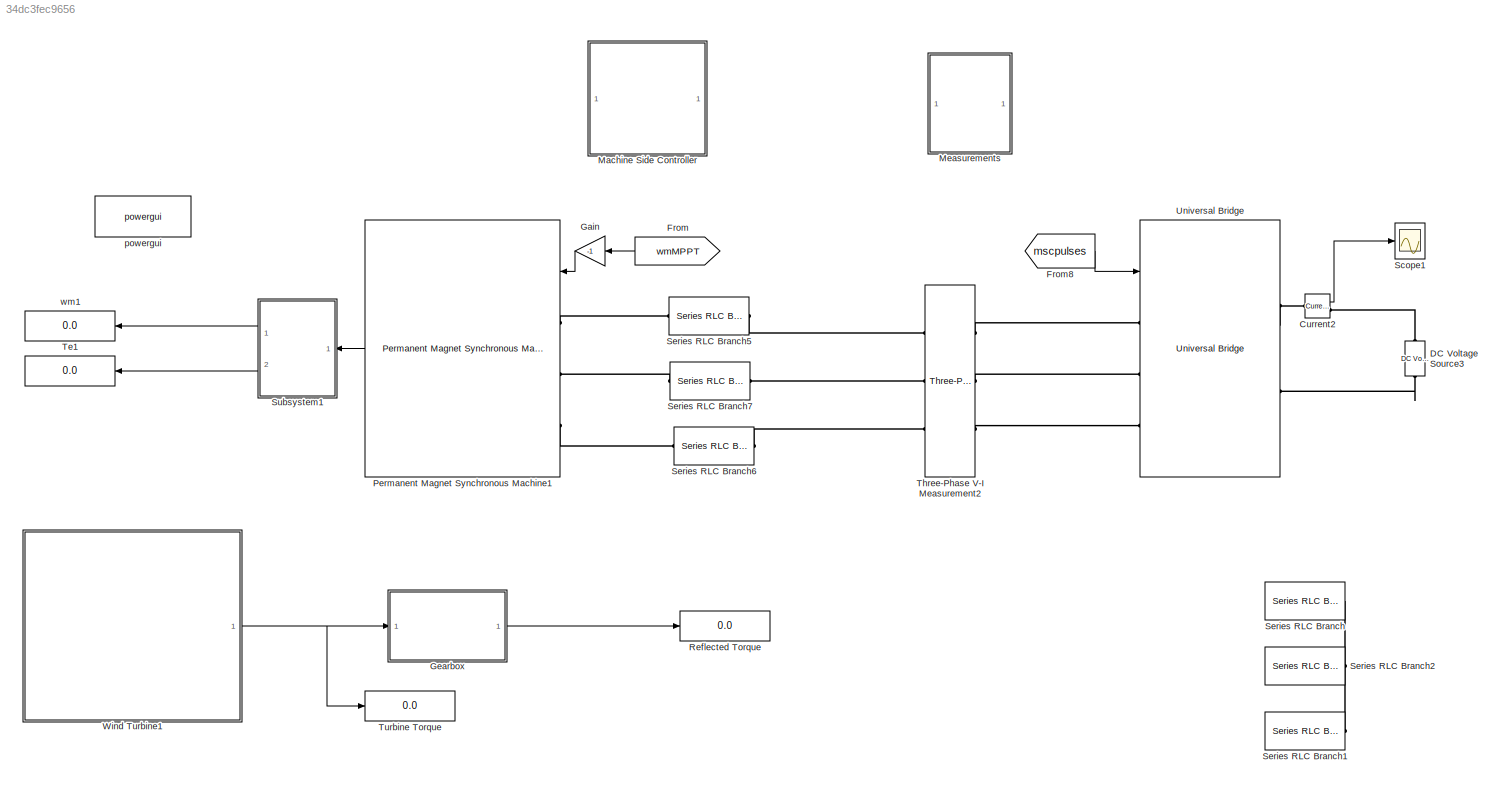
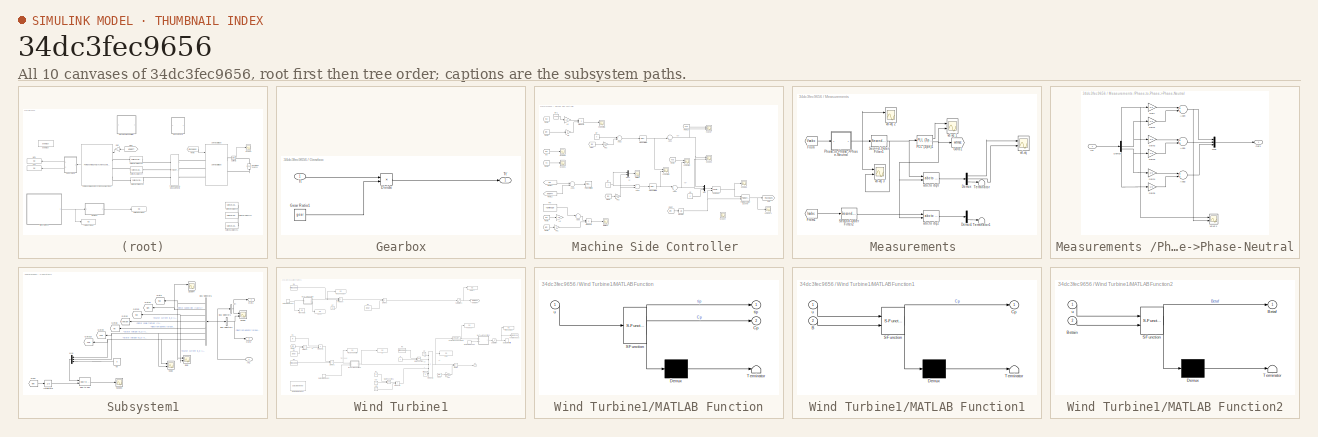
[diagram: thumbnail index - all 10 canvases of the model, root first then tree order]
MODEL slx_34dc3fec9656
KIND model
CONFIG AbsTol = auto
CONFIG FixedStep = auto
CONFIG MaxStep = auto
CONFIG MinStep = auto
CONFIG RelTol = 1e-3
CONFIG SampleTimeConstraint = Unconstrained
CONFIG Solver = VariableStepAuto
CONFIG SolverMode = Auto
CONFIG SolverName = VariableStepAuto
CONFIG StartTime = 0.0
CONFIG StopTime = 10.0
BLOCK [Reference] Current2  REF=powerlib/Measurements/Current Measurement
  Ports = [0, 1, 0, 0, 0, 1, 1]
  SourceBlock = powerlib/Measurements/Current Measurement
  SourceType = Current Measurement
  UserDataPersistent = on
BLOCK [Reference] DC Voltage Source3  REF=powerlib/Electrical
Sources/DC Voltage Source
  Ports = [0, 0, 0, 0, 0, 1, 1]
  SourceBlock = powerlib/Electrical\nSources/DC Voltage Source
  SourceType = DC Voltage Source
BLOCK [From] From
  GotoTag = wmMPPT
  TagVisibility = global
BLOCK [From] From8
  GotoTag = mscpulses
  TagVisibility = global
BLOCK [Gain] Gain
  Gain = -1
  OutDataTypeStr = Inherit: Inherit via internal rule
  ParamDataTypeStr = Inherit: Inherit via internal rule
  SaturateOnIntegerOverflow = off
BLOCK [SubSystem] Gearbox
  Ports = [1, 1]
  RequestExecContextInheritance = off
  Variant = off
BLOCK [Product] Gearbox/Divide
  InputSameDT = off
  Inputs = */
  OutDataTypeStr = Inherit: Inherit via internal rule
  Ports = [2, 1]
  RndMeth = Floor
  SaturateOnIntegerOverflow = off
BLOCK [Constant] Gearbox/Gear Ratio1
  Value = gear
BLOCK [Inport] Gearbox/Tt
  IconDisplay = Port number
BLOCK [Outport] Gearbox/Tt'
  IconDisplay = Port number
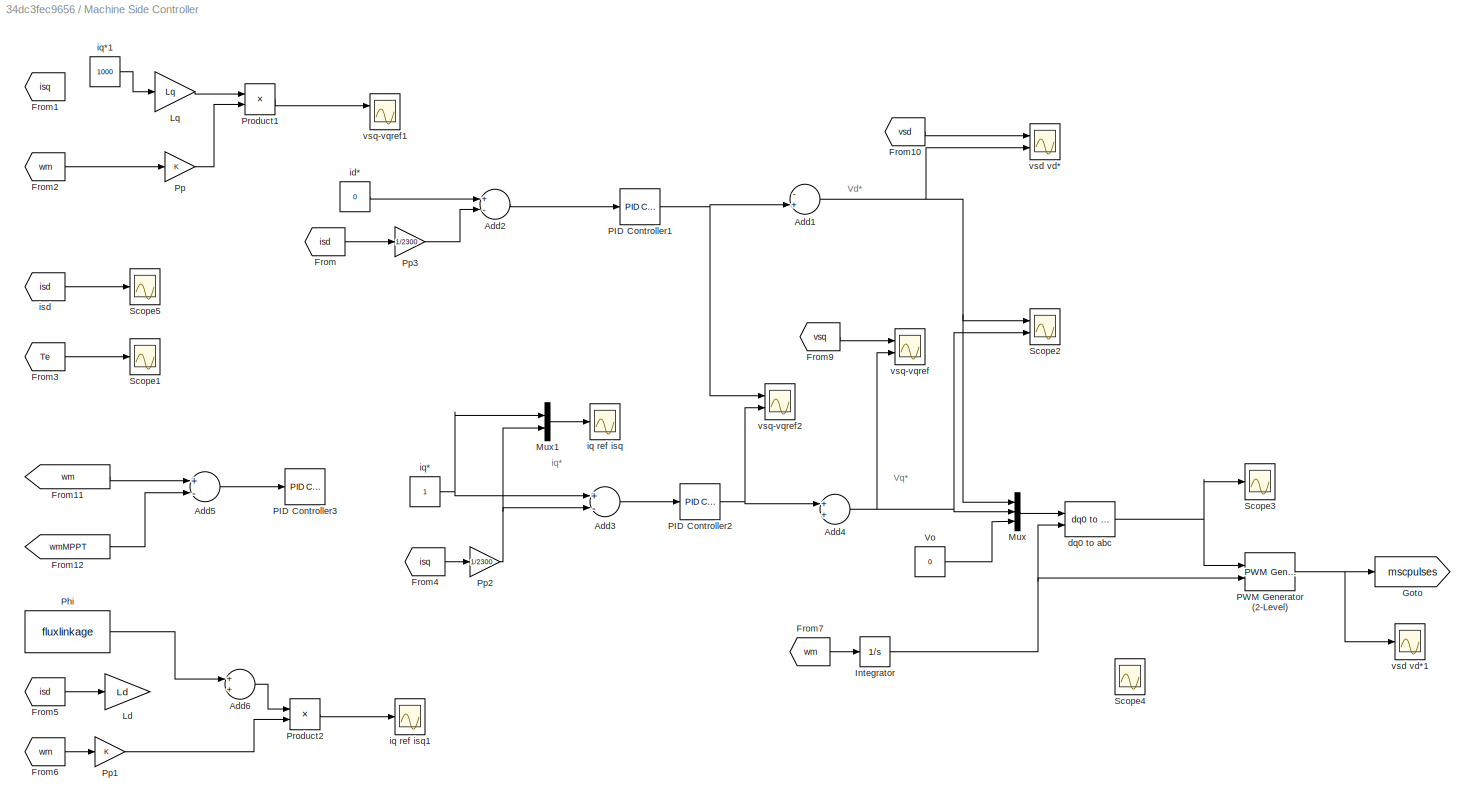
BLOCK [SubSystem] Machine Side Controller 
  Ports = []
  RequestExecContextInheritance = off
  Variant = off
BLOCK [Sum] Machine Side Controller /Add1
  InputSameDT = off
  Inputs = -+
  OutDataTypeStr = Inherit: Inherit via internal rule
  Ports = [2, 1]
  SaturateOnIntegerOverflow = off
BLOCK [Sum] Machine Side Controller /Add2
  InputSameDT = off
  Inputs = +-
  OutDataTypeStr = Inherit: Inherit via internal rule
  Ports = [2, 1]
  SaturateOnIntegerOverflow = off
BLOCK [Sum] Machine Side Controller /Add3
  InputSameDT = off
  Inputs = +-
  OutDataTypeStr = Inherit: Inherit via internal rule
  Ports = [2, 1]
  SaturateOnIntegerOverflow = off
BLOCK [Sum] Machine Side Controller /Add4
  InputSameDT = off
  OutDataTypeStr = Inherit: Inherit via internal rule
  Ports = [2, 1]
  SaturateOnIntegerOverflow = off
BLOCK [Sum] Machine Side Controller /Add5
  InputSameDT = off
  Inputs = +-
  OutDataTypeStr = Inherit: Inherit via internal rule
  Ports = [2, 1]
  SaturateOnIntegerOverflow = off
BLOCK [Sum] Machine Side Controller /Add6
  InputSameDT = off
  OutDataTypeStr = Inherit: Inherit via internal rule
  Ports = [2, 1]
  SaturateOnIntegerOverflow = off
BLOCK [From] Machine Side Controller /From
  GotoTag = isd
  TagVisibility = global
BLOCK [From] Machine Side Controller /From1
  GotoTag = isq
  TagVisibility = global
BLOCK [From] Machine Side Controller /From10
  GotoTag = vsd
  TagVisibility = global
BLOCK [From] Machine Side Controller /From11
  GotoTag = wm
  TagVisibility = global
BLOCK [From] Machine Side Controller /From12
  GotoTag = wmMPPT
  TagVisibility = global
BLOCK [From] Machine Side Controller /From2
  GotoTag = wm
  TagVisibility = global
BLOCK [From] Machine Side Controller /From3
  GotoTag = Te
  TagVisibility = global
BLOCK [From] Machine Side Controller /From4
  GotoTag = isq
  TagVisibility = global
BLOCK [From] Machine Side Controller /From5
  GotoTag = isd
  TagVisibility = global
BLOCK [From] Machine Side Controller /From6
  GotoTag = wm
  TagVisibility = global
BLOCK [From] Machine Side Controller /From7
  GotoTag = wm
  TagVisibility = global
BLOCK [From] Machine Side Controller /From9
  GotoTag = vsq
  TagVisibility = global
BLOCK [Goto] Machine Side Controller /Goto
  GotoTag = mscpulses
  TagVisibility = global
BLOCK [Integrator] Machine Side Controller /Integrator
  Ports = [1, 1]
BLOCK [Gain] Machine Side Controller /Ld
  Gain = Ld
  OutDataTypeStr = Inherit: Inherit via internal rule
  ParamDataTypeStr = Inherit: Inherit via internal rule
  SaturateOnIntegerOverflow = off
BLOCK [Gain] Machine Side Controller /Lq
  Gain = Lq
  OutDataTypeStr = Inherit: Inherit via internal rule
  ParamDataTypeStr = Inherit: Inherit via internal rule
  SaturateOnIntegerOverflow = off
BLOCK [Mux] Machine Side Controller /Mux
  DisplayOption = bar
  Inputs = 3
  Ports = [3, 1]
BLOCK [Mux] Machine Side Controller /Mux1
  DisplayOption = bar
  Inputs = 2
  Ports = [2, 1]
BLOCK [Reference] Machine Side Controller /PID Controller1  REF=simulink/Continuous/PID Controller
  Ports = [1, 1]
  SourceBlock = simulink/Continuous/PID Controller
  SourceType = PID 1dof
BLOCK [Reference] Machine Side Controller /PID Controller2  REF=simulink/Continuous/PID Controller
  Ports = [1, 1]
  SourceBlock = simulink/Continuous/PID Controller
  SourceType = PID 1dof
BLOCK [Reference] Machine Side Controller /PID Controller3  REF=simulink/Continuous/PID Controller
  Ports = [1, 1]
  SourceBlock = simulink/Continuous/PID Controller
  SourceType = PID 1dof
BLOCK [Reference] Machine Side Controller /PWM Generator (2-Level)  REF=powerlib_meascontrol/Pulse & Signal
Generators/PWM Generator
(2-Level)
  Ports = [2, 1]
  SourceBlock = powerlib_meascontrol/Pulse & Signal\nGenerators/PWM Generator\n(2-Level)
  SourceType = PWM Generator (2-Level)
BLOCK [Constant] Machine Side Controller /Phi
  Value = fluxlinkage
BLOCK [Gain] Machine Side Controller /Pp
  OutDataTypeStr = Inherit: Inherit via internal rule
  ParamDataTypeStr = Inherit: Inherit via internal rule
  SaturateOnIntegerOverflow = off
BLOCK [Gain] Machine Side Controller /Pp1
  OutDataTypeStr = Inherit: Inherit via internal rule
  ParamDataTypeStr = Inherit: Inherit via internal rule
  SaturateOnIntegerOverflow = off
BLOCK [Gain] Machine Side Controller /Pp2
  Gain = 1/2300
  OutDataTypeStr = Inherit: Inherit via internal rule
  ParamDataTypeStr = Inherit: Inherit via internal rule
  SaturateOnIntegerOverflow = off
BLOCK [Gain] Machine Side Controller /Pp3
  Gain = 1/2300
  OutDataTypeStr = Inherit: Inherit via internal rule
  ParamDataTypeStr = Inherit: Inherit via internal rule
  SaturateOnIntegerOverflow = off
BLOCK [Product] Machine Side Controller /Product1
  InputSameDT = off
  OutDataTypeStr = Inherit: Inherit via internal rule
  Ports = [2, 1]
  RndMeth = Floor
  SaturateOnIntegerOverflow = off
BLOCK [Product] Machine Side Controller /Product2
  InputSameDT = off
  OutDataTypeStr = Inherit: Inherit via internal rule
  Ports = [2, 1]
  RndMeth = Floor
  SaturateOnIntegerOverflow = off
BLOCK [Scope] Machine Side Controller /Scope1
  Ports = [1]
  ScopeSpecificationString = Simulink.scopes.TimeScopeBlockCfg('CurrentConfiguration', extmgr.ConfigurationSet(extmgr.Configuration('Core','General UI',true),extmgr.Configuration('Core','Source UI',true),extmgr.Configuration('Sources','WiredSimulink',true,'DataLoggingVariableName','ScopeData2','DataLoggingSaveFormat','Array','DataLoggingDecimation','1','DataLoggingDecimateData',true),extmgr.Configuration('Visuals','Time Domai...<+1614ch>
BLOCK [Scope] Machine Side Controller /Scope2
  NumInputPorts = 2
  Ports = [2]
  ScopeSpecificationString = Simulink.scopes.TimeScopeBlockCfg('CurrentConfiguration', extmgr.ConfigurationSet(extmgr.Configuration('Core','General UI',true),extmgr.Configuration('Core','Source UI',true),extmgr.Configuration('Sources','WiredSimulink',true,'DataLoggingVariableName','ScopeData3','DataLoggingSaveFormat','Array','DataLoggingDecimation','1','DataLoggingDecimateData',true),extmgr.Configuration('Visuals','Time Domai...<+1531ch>
BLOCK [Scope] Machine Side Controller /Scope3
  Ports = [1]
  ScopeSpecificationString = Simulink.scopes.TimeScopeBlockCfg('CurrentConfiguration', extmgr.ConfigurationSet(extmgr.Configuration('Core','General UI',true),extmgr.Configuration('Core','Source UI',true),extmgr.Configuration('Sources','WiredSimulink',true,'DataLoggingVariableName','ScopeData4','DataLoggingSaveFormat','Array','DataLoggingDecimation','1','DataLoggingDecimateData',true),extmgr.Configuration('Visuals','Time Domai...<+1536ch>
BLOCK [Scope] Machine Side Controller /Scope4
  NumInputPorts = 2
  Ports = [2]
  ScopeSpecificationString = Simulink.scopes.TimeScopeBlockCfg('CurrentConfiguration', extmgr.ConfigurationSet(extmgr.Configuration('Core','General UI',true),extmgr.Configuration('Core','Source UI',true),extmgr.Configuration('Sources','WiredSimulink',true,'DataLoggingVariableName','ScopeData1','DataLoggingSaveFormat','Array','DataLoggingDecimation','1','DataLoggingDecimateData',true),extmgr.Configuration('Visuals','Time Domai...<+1548ch>
BLOCK [Scope] Machine Side Controller /Scope5
  Ports = [1]
  ScopeSpecificationString = Simulink.scopes.TimeScopeBlockCfg('CurrentConfiguration', extmgr.ConfigurationSet(extmgr.Configuration('Core','General UI',true),extmgr.Configuration('Core','Source UI',true),extmgr.Configuration('Sources','WiredSimulink',true,'DataLoggingVariableName','ScopeData6','DataLoggingSaveFormat','Array','DataLoggingDecimation','1','DataLoggingDecimateData',true),extmgr.Configuration('Visuals','Time Domai...<+1576ch>
BLOCK [Constant] Machine Side Controller /Vo
  Value = 0
BLOCK [Reference] Machine Side Controller /dq0 to abc  REF=powerlib_meascontrol/Transformations/dq0 to abc
  Ports = [2, 1]
  SourceBlock = powerlib_meascontrol/Transformations/dq0 to abc
  SourceType = dq0 to abc Transformation
BLOCK [Constant] Machine Side Controller /id*
  Value = 0
BLOCK [Scope] Machine Side Controller /iq ref isq
  Ports = [1]
  ScopeSpecificationString = Simulink.scopes.TimeScopeBlockCfg('CurrentConfiguration', extmgr.ConfigurationSet(extmgr.Configuration('Core','General UI',true),extmgr.Configuration('Core','Source UI',true),extmgr.Configuration('Sources','WiredSimulink',true,'DataLoggingVariableName','ScopeData7'),extmgr.Configuration('Visuals','Time Domain',true,'SerializedDisplays',{struct('MinYLimReal','-27.35983','MaxYLimReal','29.38558','YL...<+1447ch>
BLOCK [Scope] Machine Side Controller /iq ref isq1
  Ports = [1]
  ScopeSpecificationString = Simulink.scopes.TimeScopeBlockCfg('CurrentConfiguration', extmgr.ConfigurationSet(extmgr.Configuration('Core','General UI',true),extmgr.Configuration('Core','Source UI',true),extmgr.Configuration('Sources','WiredSimulink',true,'DataLoggingVariableName','ScopeData8','DataLoggingSaveFormat','Array','DataLoggingDecimation','1','DataLoggingDecimateData',true),extmgr.Configuration('Visuals','Time Domai...<+1492ch>
BLOCK [Constant] Machine Side Controller /iq*
BLOCK [Constant] Machine Side Controller /iq*1
  Value = 1000
BLOCK [From] Machine Side Controller /isd
  GotoTag = isd
  TagVisibility = global
BLOCK [Scope] Machine Side Controller /vsd vd*
  NumInputPorts = 2
  Ports = [2]
  ScopeSpecificationString = Simulink.scopes.TimeScopeBlockCfg('CurrentConfiguration', extmgr.ConfigurationSet(extmgr.Configuration('Core','General UI',true),extmgr.Configuration('Core','Source UI',true),extmgr.Configuration('Sources','WiredSimulink',true,'DataLoggingVariableName','ScopeData9'),extmgr.Configuration('Visuals','Time Domain',true,'SerializedDisplays',{struct('MinYLimReal','-1778.05056','MaxYLimReal','1671.94944'...<+1466ch>
BLOCK [Scope] Machine Side Controller /vsd vd*1
  Ports = [1]
  ScopeSpecificationString = Simulink.scopes.TimeScopeBlockCfg('CurrentConfiguration', extmgr.ConfigurationSet(extmgr.Configuration('Core','General UI',true),extmgr.Configuration('Core','Source UI',true),extmgr.Configuration('Sources','WiredSimulink',true,'DataLoggingVariableName','ScopeData10','DataLoggingSaveFormat','Array','DataLoggingDecimation','1','DataLoggingDecimateData',true),extmgr.Configuration('Visuals','Time Doma...<+1648ch>
BLOCK [Scope] Machine Side Controller /vsq-vqref
  NumInputPorts = 2
  Ports = [2]
  ScopeSpecificationString = Simulink.scopes.TimeScopeBlockCfg('CurrentConfiguration', extmgr.ConfigurationSet(extmgr.Configuration('Core','General UI',true),extmgr.Configuration('Core','Source UI',true),extmgr.Configuration('Sources','WiredSimulink',true,'DataLoggingVariableName','ScopeData11','DataLoggingSaveFormat','Array','DataLoggingDecimation','1','DataLoggingDecimateData',true),extmgr.Configuration('Visuals','Time Doma...<+1568ch>
BLOCK [Scope] Machine Side Controller /vsq-vqref1
  NumInputPorts = 2
  Ports = [2]
  ScopeSpecificationString = Simulink.scopes.TimeScopeBlockCfg('CurrentConfiguration', extmgr.ConfigurationSet(extmgr.Configuration('Core','General UI',true),extmgr.Configuration('Core','Source UI',true),extmgr.Configuration('Sources','WiredSimulink',true,'DataLoggingVariableName','ScopeData2','DataLoggingLimitDataPoints',true,'DataLoggingSaveFormat','Array','DataLoggingDecimation','1','DataLoggingDecimateData',true),extmgr.C...<+1556ch>
BLOCK [Scope] Machine Side Controller /vsq-vqref2
  NumInputPorts = 2
  Ports = [2]
  ScopeSpecificationString = Simulink.scopes.TimeScopeBlockCfg('CurrentConfiguration', extmgr.ConfigurationSet(extmgr.Configuration('Core','General UI',true),extmgr.Configuration('Core','Source UI',true),extmgr.Configuration('Sources','WiredSimulink',true,'DataLoggingVariableName','ScopeData13'),extmgr.Configuration('Visuals','Time Domain',true,'SerializedDisplays',{struct('MinYLimReal','-0.00093','MaxYLimReal','0.00101','YLa...<+1466ch>
BLOCK [SubSystem] Measurements 
  Ports = []
  RequestExecContextInheritance = off
  Variant = off
BLOCK [Demux] Measurements /Demux
  DisplayOption = bar
  Outputs = 3
  Ports = [1, 3]
BLOCK [Demux] Measurements /Demux1
  DisplayOption = bar
  Outputs = 3
  Ports = [1, 3]
BLOCK [From] Measurements /From
  GotoTag = Vsabc
  TagVisibility = global
BLOCK [From] Measurements /From1
  GotoTag = Isabc
  TagVisibility = global
BLOCK [Goto] Measurements /Goto1
  GotoTag = wtmsc
  TagVisibility = global
BLOCK [Reference] Measurements /PLL (3ph)1  REF=powerlib_meascontrol/PLL/PLL
(3ph)
  Ports = [1, 2]
  SourceBlock = powerlib_meascontrol/PLL/PLL\n(3ph)
  SourceType = PLL (3ph)
BLOCK [SubSystem] Measurements /Phase-to-Phase->Phase-Neutral
  Ports = [1, 1]
  RequestExecContextInheritance = off
  Variant = off
BLOCK [Sum] Measurements /Phase-to-Phase->Phase-Neutral/Add1
  InputSameDT = off
  OutDataTypeStr = Inherit: Inherit via internal rule
  Ports = [2, 1]
  SaturateOnIntegerOverflow = off
BLOCK [Sum] Measurements /Phase-to-Phase->Phase-Neutral/Add2
  InputSameDT = off
  OutDataTypeStr = Inherit: Inherit via internal rule
  Ports = [2, 1]
  SaturateOnIntegerOverflow = off
BLOCK [Sum] Measurements /Phase-to-Phase->Phase-Neutral/Add4
  InputSameDT = off
  OutDataTypeStr = Inherit: Inherit via internal rule
  Ports = [2, 1]
  SaturateOnIntegerOverflow = off
BLOCK [Demux] Measurements /Phase-to-Phase->Phase-Neutral/Demux
  DisplayOption = bar
  Outputs = 3
  Ports = [1, 3]
BLOCK [Gain] Measurements /Phase-to-Phase->Phase-Neutral/Gain
  Gain = 2/3
  OutDataTypeStr = Inherit: Inherit via internal rule
  ParamDataTypeStr = Inherit: Inherit via internal rule
  SaturateOnIntegerOverflow = off
BLOCK [Gain] Measurements /Phase-to-Phase->Phase-Neutral/Gain1
  Gain = 1/3
  OutDataTypeStr = Inherit: Inherit via internal rule
  ParamDataTypeStr = Inherit: Inherit via internal rule
  SaturateOnIntegerOverflow = off
BLOCK [Gain] Measurements /Phase-to-Phase->Phase-Neutral/Gain2
  Gain = 2/3
  OutDataTypeStr = Inherit: Inherit via internal rule
  ParamDataTypeStr = Inherit: Inherit via internal rule
  SaturateOnIntegerOverflow = off
BLOCK [Gain] Measurements /Phase-to-Phase->Phase-Neutral/Gain3
  Gain = 1/3
  OutDataTypeStr = Inherit: Inherit via internal rule
  ParamDataTypeStr = Inherit: Inherit via internal rule
  SaturateOnIntegerOverflow = off
BLOCK [Gain] Measurements /Phase-to-Phase->Phase-Neutral/Gain4
  Gain = 2/3
  OutDataTypeStr = Inherit: Inherit via internal rule
  ParamDataTypeStr = Inherit: Inherit via internal rule
  SaturateOnIntegerOverflow = off
BLOCK [Gain] Measurements /Phase-to-Phase->Phase-Neutral/Gain5
  Gain = 1/3
  OutDataTypeStr = Inherit: Inherit via internal rule
  ParamDataTypeStr = Inherit: Inherit via internal rule
  SaturateOnIntegerOverflow = off
BLOCK [Inport] Measurements /Phase-to-Phase->Phase-Neutral/In1
  IconDisplay = Port number
BLOCK [Mux] Measurements /Phase-to-Phase->Phase-Neutral/Mux
  DisplayOption = bar
  Inputs = 3
  Ports = [3, 1]
BLOCK [Outport] Measurements /Phase-to-Phase->Phase-Neutral/Out1
  IconDisplay = Port number
BLOCK [Scope] Measurements /Phase-to-Phase->Phase-Neutral/vd-vq 1
  NumInputPorts = 2
  Ports = [2]
  ScopeSpecificationString = Simulink.scopes.TimeScopeBlockCfg('CurrentConfiguration', extmgr.ConfigurationSet(extmgr.Configuration('Core','General UI',true),extmgr.Configuration('Core','Source UI',true),extmgr.Configuration('Sources','WiredSimulink',true,'DataLoggingVariableName','ScopeData1'),extmgr.Configuration('Visuals','Time Domain',true,'SerializedDisplays',{struct('MinYLimReal','-26134.92389','MaxYLimReal','26232.3082...<+1474ch>
BLOCK [Reference] Measurements /Second-Order Filter1  REF=powerlib_meascontrol/Filters/Second-Order
Filter
  Ports = [1, 1]
  SourceBlock = powerlib_meascontrol/Filters/Second-Order\nFilter
  SourceType = Second-Order Filter
BLOCK [Reference] Measurements /Second-Order Filter2  REF=powerlib_meascontrol/Filters/Second-Order
Filter
  Ports = [1, 1]
  SourceBlock = powerlib_meascontrol/Filters/Second-Order\nFilter
  SourceType = Second-Order Filter
BLOCK [Terminator] Measurements /Terminator
BLOCK [Terminator] Measurements /Terminator1
BLOCK [Reference] Measurements /abc to dq0  REF=powerlib_meascontrol/Transformations/abc to dq0
  Ports = [2, 1]
  SourceBlock = powerlib_meascontrol/Transformations/abc to dq0
  SourceType = abc to dq0 Transformation
BLOCK [Reference] Measurements /abc to dq2  REF=powerlib_meascontrol/Transformations/abc to dq0
  Ports = [2, 1]
  SourceBlock = powerlib_meascontrol/Transformations/abc to dq0
  SourceType = abc to dq0 Transformation
BLOCK [Scope] Measurements /vd-vq 
  NumInputPorts = 2
  Ports = [2]
  ScopeSpecificationString = Simulink.scopes.TimeScopeBlockCfg('CurrentConfiguration', extmgr.ConfigurationSet(extmgr.Configuration('Core','General UI',true),extmgr.Configuration('Core','Source UI',true),extmgr.Configuration('Sources','WiredSimulink',true,'DataLoggingVariableName','ScopeData1','DataLoggingSaveFormat','Array','DataLoggingDecimation','1','DataLoggingDecimateData',true),extmgr.Configuration('Visuals','Time Domai...<+1540ch>
BLOCK [Scope] Measurements /vd-vq 1
  NumInputPorts = 2
  Ports = [2]
  ScopeSpecificationString = Simulink.scopes.TimeScopeBlockCfg('CurrentConfiguration', extmgr.ConfigurationSet(extmgr.Configuration('Core','General UI',true),extmgr.Configuration('Core','Source UI',true),extmgr.Configuration('Sources','WiredSimulink',true,'DataLoggingVariableName','ScopeData3','DataLoggingSaveFormat','Array','DataLoggingDecimation','1','DataLoggingDecimateData',true),extmgr.Configuration('Visuals','Time Domai...<+1554ch>
BLOCK [Scope] Measurements /vd-vq 2
  NumInputPorts = 2
  Ports = [2]
  ScopeSpecificationString = Simulink.scopes.TimeScopeBlockCfg('CurrentConfiguration', extmgr.ConfigurationSet(extmgr.Configuration('Core','General UI',true),extmgr.Configuration('Core','Source UI',true),extmgr.Configuration('Sources','WiredSimulink',true,'DataLoggingVariableName','ScopeData4','DataLoggingSaveFormat','Array','DataLoggingDecimation','1','DataLoggingDecimateData',true),extmgr.Configuration('Visuals','Time Domai...<+1628ch>
BLOCK [Scope] Measurements /vd-vq 3
  NumInputPorts = 2
  Ports = [2]
  ScopeSpecificationString = Simulink.scopes.TimeScopeBlockCfg('CurrentConfiguration', extmgr.ConfigurationSet(extmgr.Configuration('Core','General UI',true),extmgr.Configuration('Core','Source UI',true),extmgr.Configuration('Sources','WiredSimulink',true,'DataLoggingVariableName','ScopeData1'),extmgr.Configuration('Visuals','Time Domain',true,'SerializedDisplays',{struct('MinYLimReal','-1.53079','MaxYLimReal','1.52127','YLab...<+1604ch>
BLOCK [Reference] Permanent Magnet Synchronous Machine1  REF=powerlib/Machines/Permanent Magnet
Synchronous Machine
  Ports = [1, 1, 0, 0, 0, 3]
  SourceBlock = powerlib/Machines/Permanent Magnet\nSynchronous Machine
  SourceType = Permanent Magnet Synchronous Machine
BLOCK [Display] Reflected Torque
  Decimation = 1
  Ports = [1]
BLOCK [Scope] Scope1
  Ports = [1]
  ScopeSpecificationString = C++SS(StrPVP('SaveName','ScopeData1'))
BLOCK [Reference] Series RLC Branch  REF=powerlib/Elements/Series RLC Branch
  Ports = [0, 0, 0, 0, 0, 1, 1]
  SourceBlock = powerlib/Elements/Series RLC Branch
  SourceType = Series RLC Branch
BLOCK [Reference] Series RLC Branch1  REF=powerlib/Elements/Series RLC Branch
  Ports = [0, 0, 0, 0, 0, 1, 1]
  SourceBlock = powerlib/Elements/Series RLC Branch
  SourceType = Series RLC Branch
BLOCK [Reference] Series RLC Branch2  REF=powerlib/Elements/Series RLC Branch
  Ports = [0, 0, 0, 0, 0, 1, 1]
  SourceBlock = powerlib/Elements/Series RLC Branch
  SourceType = Series RLC Branch
BLOCK [Reference] Series RLC Branch5  REF=powerlib/Elements/Series RLC Branch
  Ports = [0, 0, 0, 0, 0, 1, 1]
  SourceBlock = powerlib/Elements/Series RLC Branch
  SourceType = Series RLC Branch
BLOCK [Reference] Series RLC Branch6  REF=powerlib/Elements/Series RLC Branch
  Ports = [0, 0, 0, 0, 0, 1, 1]
  SourceBlock = powerlib/Elements/Series RLC Branch
  SourceType = Series RLC Branch
BLOCK [Reference] Series RLC Branch7  REF=powerlib/Elements/Series RLC Branch
  Ports = [0, 0, 0, 0, 0, 1, 1]
  SourceBlock = powerlib/Elements/Series RLC Branch
  SourceType = Series RLC Branch
BLOCK [SubSystem] Subsystem1
  Ports = [1, 2]
  RequestExecContextInheritance = off
  Variant = off
BLOCK [BusSelector] Subsystem1/Bus Selector1
  OutputAsBus = on
  OutputSignals = Rotor speed wm (rad/s)
  Ports = [1, 1]
BLOCK [BusSelector] Subsystem1/Bus Selector2
  OutputSignals = Electromagnetic torque Te (N*m)
  Ports = [1, 1]
BLOCK [BusSelector] Subsystem1/Bus Selector5
  OutputSignals = Stator current is_d (A),Rotor speed wm (rad/s),Stator current is_q (A),Rotor angle thetam (rad),Electromagnetic torque Te (N*m),Stator voltage Vs_q (V),Stator voltage Vs_d (V)
  Ports = [1, 7]
BLOCK [From] Subsystem1/From
  GotoTag = wm
  TagVisibility = global
BLOCK [Goto] Subsystem1/Goto
  GotoTag = isd
  TagVisibility = global
BLOCK [Goto] Subsystem1/Goto1
  GotoTag = wm
  TagVisibility = global
BLOCK [Goto] Subsystem1/Goto10
  GotoTag = vsd
  TagVisibility = global
BLOCK [Goto] Subsystem1/Goto2
  GotoTag = thetam
  TagVisibility = global
BLOCK [Goto] Subsystem1/Goto3
  GotoTag = isq
  TagVisibility = global
BLOCK [Goto] Subsystem1/Goto8
  GotoTag = Te
  TagVisibility = global
BLOCK [Goto] Subsystem1/Goto9
  GotoTag = vsq
  TagVisibility = global
BLOCK [Inport] Subsystem1/In1
  IconDisplay = Port number
BLOCK [Integrator] Subsystem1/Integrator
  Ports = [1, 1]
BLOCK [Mux] Subsystem1/Mux
  DisplayOption = bar
  Inputs = 3
  Ports = [3, 1]
BLOCK [Outport] Subsystem1/Out1
  IconDisplay = Port number
BLOCK [Outport] Subsystem1/Out2
  IconDisplay = Port number
  Port = 2
BLOCK [Scope] Subsystem1/Scope
  NumInputPorts = 2
  Ports = [2]
  ScopeSpecificationString = Simulink.scopes.TimeScopeBlockCfg('CurrentConfiguration', extmgr.ConfigurationSet(extmgr.Configuration('Core','General UI',true),extmgr.Configuration('Core','Source UI',true),extmgr.Configuration('Sources','WiredSimulink',true,'DataLoggingVariableName','ScopeData1','DataLoggingSaveFormat','Array','DataLoggingDecimation','1','DataLoggingDecimateData',true),extmgr.Configuration('Visuals','Time Domai...<+1592ch>
BLOCK [Scope] Subsystem1/Scope3
  Ports = [1]
  ScopeSpecificationString = Simulink.scopes.TimeScopeBlockCfg('CurrentConfiguration', extmgr.ConfigurationSet(extmgr.Configuration('Core','General UI',true),extmgr.Configuration('Core','Source UI',true),extmgr.Configuration('Sources','WiredSimulink',true,'DataLoggingVariableName','ScopeData5'),extmgr.Configuration('Visuals','Time Domain',true,'SerializedDisplays',{struct('MinYLimReal','-920.96103','MaxYLimReal','921.85507','...<+1488ch>
BLOCK [Scope] Subsystem1/Scope4
  NumInputPorts = 2
  Ports = [2]
  ScopeSpecificationString = Simulink.scopes.TimeScopeBlockCfg('CurrentConfiguration', extmgr.ConfigurationSet(extmgr.Configuration('Core','General UI',true),extmgr.Configuration('Core','Source UI',true),extmgr.Configuration('Sources','WiredSimulink',true,'DataLoggingVariableName','ScopeData2'),extmgr.Configuration('Visuals','Time Domain',true,'SerializedDisplays',{struct('MinYLimReal','150.59939','MaxYLimReal','158.5363','YL...<+1449ch>
BLOCK [Constant] Subsystem1/Vo
  Value = 0
BLOCK [Scope] Subsystem1/Vsqd
  NumInputPorts = 2
  Ports = [2]
  ScopeSpecificationString = Simulink.scopes.TimeScopeBlockCfg('CurrentConfiguration', extmgr.ConfigurationSet(extmgr.Configuration('Core','General UI',true),extmgr.Configuration('Core','Source UI',true),extmgr.Configuration('Sources','WiredSimulink',true,'DataLoggingVariableName','ScopeData1'),extmgr.Configuration('Visuals','Time Domain',true,'SerializedDisplays',{struct('MinYLimReal','-796.40374','MaxYLimReal','831.79898','...<+1499ch>
BLOCK [Reference] Subsystem1/dq0 to abc  REF=powerlib_meascontrol/Transformations/dq0 to abc
  Ports = [2, 1]
  SourceBlock = powerlib_meascontrol/Transformations/dq0 to abc
  SourceType = dq0 to abc Transformation
BLOCK [Scope] Subsystem1/isdq
  NumInputPorts = 2
  Ports = [2]
  ScopeSpecificationString = Simulink.scopes.TimeScopeBlockCfg('CurrentConfiguration', extmgr.ConfigurationSet(extmgr.Configuration('Core','General UI',true),extmgr.Configuration('Core','Source UI',true),extmgr.Configuration('Sources','WiredSimulink',true,'DataLoggingVariableName','ScopeData4'),extmgr.Configuration('Visuals','Time Domain',true,'SerializedDisplays',{struct('MinYLimReal','-67099.29484','MaxYLimReal','53216.0487...<+1515ch>
BLOCK [Display] Te1
  Decimation = 1
  Ports = [1]
BLOCK [Reference] Three-Phase V-I Measurement2  REF=powerlib/Measurements/Three-Phase
V-I Measurement
  Ports = [0, 0, 0, 0, 0, 3, 3]
  SourceBlock = powerlib/Measurements/Three-Phase\nV-I Measurement
  SourceType = Three-Phase VI Measurement
BLOCK [Display] Turbine Torque
  Decimation = 1
  Ports = [1]
BLOCK [Reference] Universal Bridge  REF=powerlib/Power
Electronics/Universal Bridge
  Ports = [1, 0, 0, 0, 0, 3, 2]
  SourceBlock = powerlib/Power\nElectronics/Universal Bridge
  SourceType = Universal Bridge
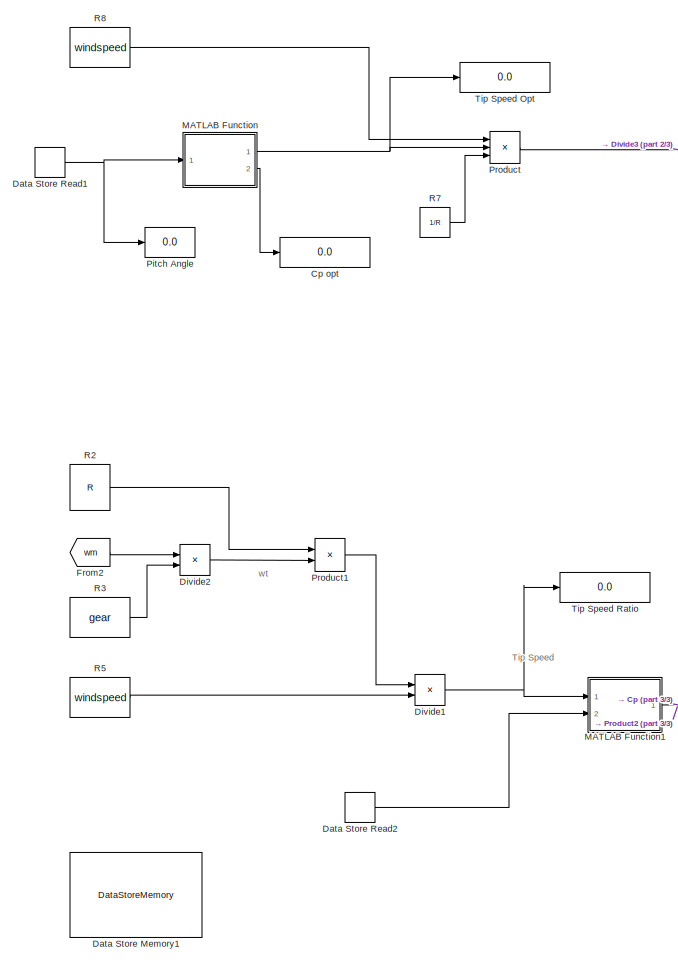
[diagram: Wind Turbine1 - part 1/3, left side, full height]
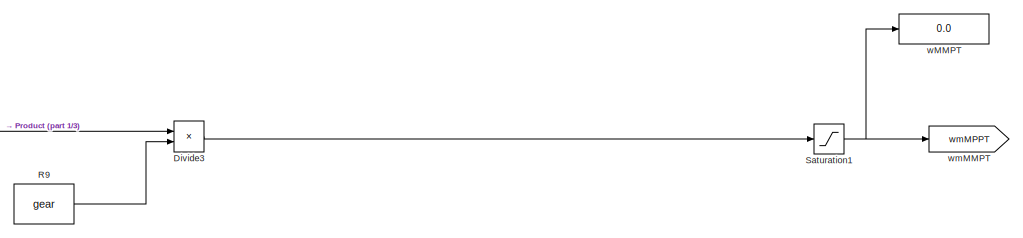
[diagram: Wind Turbine1 - part 2/3, top center region]
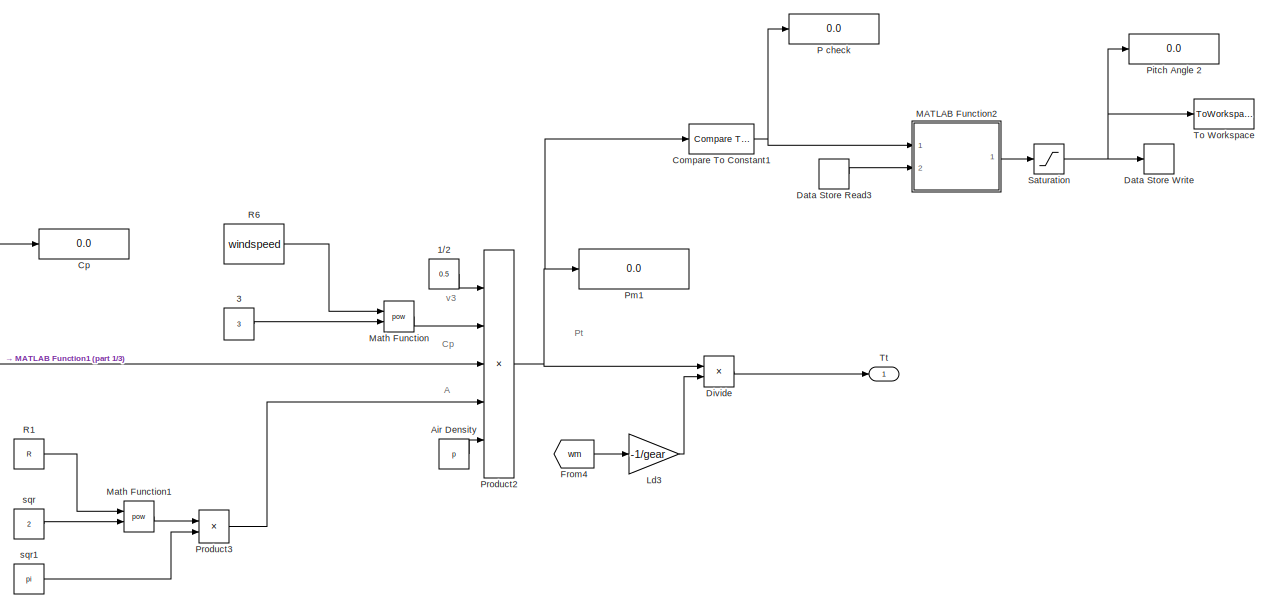
[diagram: Wind Turbine1 - part 3/3, bottom right region]
BLOCK [SubSystem] Wind Turbine1
  Ports = [0, 1]
  RequestExecContextInheritance = off
  Variant = off
BLOCK [Constant] Wind Turbine1/1//2
  Value = 0.5
BLOCK [Constant] Wind Turbine1/3
  Value = 3
BLOCK [Constant] Wind Turbine1/Air Density
  Value = p
BLOCK [Reference] Wind Turbine1/Compare To Constant1  REF=simulink/Logic and Bit
Operations/Compare
To Constant
  Ports = [1, 1]
  SourceBlock = simulink/Logic and Bit\nOperations/Compare\nTo Constant
  SourceType = Compare To Constant
BLOCK [Display] Wind Turbine1/Cp
  Decimation = 1
  Ports = [1]
BLOCK [Display] Wind Turbine1/Cp opt
  Decimation = 1
  Ports = [1]
BLOCK [DataStoreMemory] Wind Turbine1/Data Store Memory1
  DataStoreName = Beta
  OutMax = [90]
  OutMin = [0]
  ReadBeforeWriteMsg = warning
  WriteAfterReadMsg = warning
  WriteAfterWriteMsg = warning
BLOCK [DataStoreRead] Wind Turbine1/Data Store Read1
  DataStoreName = Beta
  Ports = [0, 1]
  SampleTime = Ts
BLOCK [DataStoreRead] Wind Turbine1/Data Store Read2
  DataStoreName = Beta
  Ports = [0, 1]
  SampleTime = Ts
BLOCK [DataStoreRead] Wind Turbine1/Data Store Read3
  DataStoreName = Beta
  Ports = [0, 1]
  SampleTime = Ts
BLOCK [DataStoreWrite] Wind Turbine1/Data Store Write
  DataStoreName = Beta
  Ports = [1]
BLOCK [Product] Wind Turbine1/Divide
  InputSameDT = off
  Inputs = */
  OutDataTypeStr = Inherit: Inherit via internal rule
  Ports = [2, 1]
  RndMeth = Floor
  SaturateOnIntegerOverflow = off
BLOCK [Product] Wind Turbine1/Divide1
  InputSameDT = off
  Inputs = */
  OutDataTypeStr = Inherit: Inherit via internal rule
  Ports = [2, 1]
  RndMeth = Floor
  SaturateOnIntegerOverflow = off
BLOCK [Product] Wind Turbine1/Divide2
  InputSameDT = off
  Inputs = */
  OutDataTypeStr = Inherit: Inherit via internal rule
  Ports = [2, 1]
  RndMeth = Floor
  SaturateOnIntegerOverflow = off
BLOCK [Product] Wind Turbine1/Divide3
  InputSameDT = off
  Inputs = **
  OutDataTypeStr = Inherit: Inherit via internal rule
  Ports = [2, 1]
  RndMeth = Floor
  SaturateOnIntegerOverflow = off
BLOCK [From] Wind Turbine1/From2
  GotoTag = wm
  TagVisibility = global
BLOCK [From] Wind Turbine1/From4
  GotoTag = wm
  TagVisibility = global
BLOCK [Gain] Wind Turbine1/Ld3
  Gain = -1/gear
  OutDataTypeStr = Inherit: Inherit via internal rule
  ParamDataTypeStr = Inherit: Inherit via internal rule
  SaturateOnIntegerOverflow = off
BLOCK [SubSystem] Wind Turbine1/MATLAB Function
  ErrorFcn = Stateflow.Translate.translate
  PermitHierarchicalResolution = ExplicitOnly
  Ports = [1, 2]
  RequestExecContextInheritance = off
  SFBlockType = MATLAB Function
  TreatAsAtomicUnit = on
  Variant = off
BLOCK [Demux] Wind Turbine1/MATLAB Function/ Demux 
  Outputs = 1
  Ports = [1, 1]
BLOCK [S-Function] Wind Turbine1/MATLAB Function/ SFunction 
  EnableBusSupport = on
  FunctionName = sf_sfun
  PortCounts = [1 3]
  Ports = [1, 3]
  SFunctionDeploymentMode = off
  Tag = Stateflow S-Function untitled 1
BLOCK [Terminator] Wind Turbine1/MATLAB Function/ Terminator 
BLOCK [Outport] Wind Turbine1/MATLAB Function/Cp
  IconDisplay = Port number
  Port = 2
BLOCK [Outport] Wind Turbine1/MATLAB Function/tip
  IconDisplay = Port number
BLOCK [Inport] Wind Turbine1/MATLAB Function/u
  IconDisplay = Port number
BLOCK [SubSystem] Wind Turbine1/MATLAB Function1
  ErrorFcn = Stateflow.Translate.translate
  PermitHierarchicalResolution = ExplicitOnly
  Ports = [2, 1]
  RequestExecContextInheritance = off
  SFBlockType = MATLAB Function
  TreatAsAtomicUnit = on
  Variant = off
BLOCK [Demux] Wind Turbine1/MATLAB Function1/ Demux 
  Outputs = 1
  Ports = [1, 1]
BLOCK [S-Function] Wind Turbine1/MATLAB Function1/ SFunction 
  EnableBusSupport = on
  FunctionName = sf_sfun
  PortCounts = [2 2]
  Ports = [2, 2]
  SFunctionDeploymentMode = off
  Tag = Stateflow S-Function untitled 2
BLOCK [Terminator] Wind Turbine1/MATLAB Function1/ Terminator 
BLOCK [Inport] Wind Turbine1/MATLAB Function1/B
  IconDisplay = Port number
  Port = 2
BLOCK [Outport] Wind Turbine1/MATLAB Function1/Cp
  IconDisplay = Port number
BLOCK [Inport] Wind Turbine1/MATLAB Function1/u
  IconDisplay = Port number
BLOCK [SubSystem] Wind Turbine1/MATLAB Function2
  ErrorFcn = Stateflow.Translate.translate
  PermitHierarchicalResolution = ExplicitOnly
  Ports = [2, 1]
  RequestExecContextInheritance = off
  SFBlockType = MATLAB Function
  TreatAsAtomicUnit = on
  Variant = off
BLOCK [Demux] Wind Turbine1/MATLAB Function2/ Demux 
  Outputs = 1
  Ports = [1, 1]
BLOCK [S-Function] Wind Turbine1/MATLAB Function2/ SFunction 
  EnableBusSupport = on
  FunctionName = sf_sfun
  PortCounts = [2 2]
  Ports = [2, 2]
  SFunctionDeploymentMode = off
  Tag = Stateflow S-Function untitled 3
BLOCK [Terminator] Wind Turbine1/MATLAB Function2/ Terminator 
BLOCK [Outport] Wind Turbine1/MATLAB Function2/Betaf
  IconDisplay = Port number
BLOCK [Inport] Wind Turbine1/MATLAB Function2/Betain
  IconDisplay = Port number
  Port = 2
BLOCK [Inport] Wind Turbine1/MATLAB Function2/u
  IconDisplay = Port number
BLOCK [Math] Wind Turbine1/Math Function
  Operator = pow
  Ports = [2, 1]
BLOCK [Math] Wind Turbine1/Math Function1
  Operator = pow
  Ports = [2, 1]
BLOCK [Display] Wind Turbine1/P check
  Decimation = 1
  Ports = [1]
BLOCK [Display] Wind Turbine1/Pitch Angle 
  Decimation = 1
  Ports = [1]
BLOCK [Display] Wind Turbine1/Pitch Angle 2
  Decimation = 1
  Ports = [1]
BLOCK [Display] Wind Turbine1/Pm1
  Decimation = 1
  Ports = [1]
BLOCK [Product] Wind Turbine1/Product
  InputSameDT = off
  Inputs = 3
  OutDataTypeStr = Inherit: Inherit via internal rule
  Ports = [3, 1]
  RndMeth = Floor
  SaturateOnIntegerOverflow = off
BLOCK [Product] Wind Turbine1/Product1
  InputSameDT = off
  OutDataTypeStr = Inherit: Inherit via internal rule
  Ports = [2, 1]
  RndMeth = Floor
  SaturateOnIntegerOverflow = off
BLOCK [Product] Wind Turbine1/Product2
  InputSameDT = off
  Inputs = 5
  OutDataTypeStr = Inherit: Inherit via internal rule
  Ports = [5, 1]
  RndMeth = Floor
  SaturateOnIntegerOverflow = off
BLOCK [Product] Wind Turbine1/Product3
  InputSameDT = off
  OutDataTypeStr = Inherit: Inherit via internal rule
  Ports = [2, 1]
  RndMeth = Floor
  SaturateOnIntegerOverflow = off
BLOCK [Constant] Wind Turbine1/R1
  Value = R
BLOCK [Constant] Wind Turbine1/R2
  Value = R
BLOCK [Constant] Wind Turbine1/R3
  Value = gear
BLOCK [Constant] Wind Turbine1/R5
  Value = windspeed
BLOCK [Constant] Wind Turbine1/R6
  Value = windspeed
BLOCK [Constant] Wind Turbine1/R7
  Value = 1/R
BLOCK [Constant] Wind Turbine1/R8
  Value = windspeed
BLOCK [Constant] Wind Turbine1/R9
  Value = gear
BLOCK [Saturate] Wind Turbine1/Saturation
  InputPortMap = u0
  LowerLimit = 0
  Ports = [1, 1]
  UpperLimit = 90
BLOCK [Saturate] Wind Turbine1/Saturation1
  InputPortMap = u0
  LowerLimit = 0
  Ports = [1, 1]
  UpperLimit = 181.68
BLOCK [Display] Wind Turbine1/Tip Speed Opt 
  Decimation = 1
  Ports = [1]
BLOCK [Display] Wind Turbine1/Tip Speed Ratio 
  Decimation = 1
  Ports = [1]
BLOCK [ToWorkspace] Wind Turbine1/To Workspace
  FixptAsFi = on
  MaxDataPoints = inf
  Ports = [1]
  SampleTime = -1
  Save2DSignal = 3-D array (concatenate along third dimension)
  SaveFormat = Timeseries
  VariableName = simout
BLOCK [Outport] Wind Turbine1/Tt
  IconDisplay = Port number
BLOCK [Constant] Wind Turbine1/sqr
  Value = 2
BLOCK [Constant] Wind Turbine1/sqr1
  Value = pi
BLOCK [Display] Wind Turbine1/wMMPT 
  Decimation = 1
  Ports = [1]
BLOCK [Goto] Wind Turbine1/wmMMPT
  GotoTag = wmMPPT
  TagVisibility = global
BLOCK [Reference] powergui  REF=powerlib/powergui
  Ports = []
  Priority = 2
  SourceBlock = powerlib/powergui
  SourceType = PSB option menu block
BLOCK [Display] wm1
  Decimation = 1
  Ports = [1]
ANNOTATION Machine Side Controller : Vd*
ANNOTATION Machine Side Controller : Vq*
ANNOTATION Machine Side Controller : iq*
ANNOTATION Subsystem1: wm
ANNOTATION Wind Turbine1: wt
ANNOTATION Wind Turbine1: A
ANNOTATION Wind Turbine1: Cp
ANNOTATION Wind Turbine1: Pt
ANNOTATION Wind Turbine1: Tip Speed
ANNOTATION Wind Turbine1: v3
LINE Current2:1 -> Scope1:1
LINE From8:1 -> Universal Bridge:1
LINE From:1 -> Gain:1
LINE Gain:1 -> Permanent Magnet Synchronous Machine1:1
LINE Gearbox/Divide:1 -> Gearbox/Tt':1
LINE Gearbox/Gear Ratio1:1 -> Gearbox/Divide:2
LINE Gearbox/Tt:1 -> Gearbox/Divide:1
LINE Gearbox:1 -> Reflected Torque:1
NET Machine Side Controller /Add1:1 -> Machine Side Controller /Mux:1, Machine Side Controller /Scope2:1, Machine Side Controller /vsd vd*:2
LINE Machine Side Controller /Add2:1 -> Machine Side Controller /PID Controller1:1
LINE Machine Side Controller /Add3:1 -> Machine Side Controller /PID Controller2:1
NET Machine Side Controller /Add4:1 -> Machine Side Controller /Mux:2, Machine Side Controller /Scope2:2, Machine Side Controller /vsq-vqref:2
LINE Machine Side Controller /Add5:1 -> Machine Side Controller /PID Controller3:1
LINE Machine Side Controller /Add6:1 -> Machine Side Controller /Product2:1
LINE Machine Side Controller /From10:1 -> Machine Side Controller /vsd vd*:1
LINE Machine Side Controller /From11:1 -> Machine Side Controller /Add5:1
LINE Machine Side Controller /From12:1 -> Machine Side Controller /Add5:2
LINE Machine Side Controller /From2:1 -> Machine Side Controller /Pp:1
LINE Machine Side Controller /From3:1 -> Machine Side Controller /Scope1:1
LINE Machine Side Controller /From4:1 -> Machine Side Controller /Pp2:1
LINE Machine Side Controller /From5:1 -> Machine Side Controller /Ld:1
LINE Machine Side Controller /From6:1 -> Machine Side Controller /Pp1:1
LINE Machine Side Controller /From7:1 -> Machine Side Controller /Integrator:1
LINE Machine Side Controller /From9:1 -> Machine Side Controller /vsq-vqref:1
LINE Machine Side Controller /From:1 -> Machine Side Controller /Pp3:1
NET Machine Side Controller /Integrator:1 -> Machine Side Controller /PWM Generator (2-Level):2, Machine Side Controller /dq0 to abc:2
LINE Machine Side Controller /Lq:1 -> Machine Side Controller /Product1:1
LINE Machine Side Controller /Mux1:1 -> Machine Side Controller /iq ref isq:1
LINE Machine Side Controller /Mux:1 -> Machine Side Controller /dq0 to abc:1
NET Machine Side Controller /PID Controller1:1 -> Machine Side Controller /Add1:2, Machine Side Controller /vsq-vqref2:1
NET Machine Side Controller /PID Controller2:1 -> Machine Side Controller /Add4:1, Machine Side Controller /vsq-vqref2:2
NET Machine Side Controller /PWM Generator (2-Level):1 -> Machine Side Controller /Goto:1, Machine Side Controller /vsd vd*1:1
LINE Machine Side Controller /Phi:1 -> Machine Side Controller /Add6:1
LINE Machine Side Controller /Pp1:1 -> Machine Side Controller /Product2:2
NET Machine Side Controller /Pp2:1 -> Machine Side Controller /Add3:2, Machine Side Controller /Mux1:2
LINE Machine Side Controller /Pp3:1 -> Machine Side Controller /Add2:2
LINE Machine Side Controller /Pp:1 -> Machine Side Controller /Product1:2
LINE Machine Side Controller /Product1:1 -> Machine Side Controller /vsq-vqref1:1
LINE Machine Side Controller /Product2:1 -> Machine Side Controller /iq ref isq1:1
LINE Machine Side Controller /Vo:1 -> Machine Side Controller /Mux:3
NET Machine Side Controller /dq0 to abc:1 -> Machine Side Controller /PWM Generator (2-Level):1, Machine Side Controller /Scope3:1
LINE Machine Side Controller /id*:1 -> Machine Side Controller /Add2:1
LINE Machine Side Controller /iq*1:1 -> Machine Side Controller /Lq:1
NET Machine Side Controller /iq*:1 -> Machine Side Controller /Add3:1, Machine Side Controller /Mux1:1
LINE Machine Side Controller /isd:1 -> Machine Side Controller /Scope5:1
LINE Measurements /Demux1:3 -> Measurements /Terminator1:1
LINE Measurements /Demux:1 -> Measurements /vd-vq :1
LINE Measurements /Demux:2 -> Measurements /vd-vq :2
LINE Measurements /Demux:3 -> Measurements /Terminator:1
LINE Measurements /From1:1 -> Measurements /Second-Order Filter2:1
LINE Measurements /From:1 -> Measurements /Phase-to-Phase->Phase-Neutral:1
LINE Measurements /PLL (3ph)1:1 -> Measurements /vd-vq 1:1
NET Measurements /PLL (3ph)1:2 -> Measurements /Goto1:1, Measurements /abc to dq0:2, Measurements /abc to dq2:2, Measurements /vd-vq 1:2
LINE Measurements /Phase-to-Phase->Phase-Neutral/Add1:1 -> Measurements /Phase-to-Phase->Phase-Neutral/Mux:2
LINE Measurements /Phase-to-Phase->Phase-Neutral/Add2:1 -> Measurements /Phase-to-Phase->Phase-Neutral/Mux:3
NET Measurements /Phase-to-Phase->Phase-Neutral/Add4:1 -> Measurements /Phase-to-Phase->Phase-Neutral/Mux:1, Measurements /Phase-to-Phase->Phase-Neutral/vd-vq 1:2
NET Measurements /Phase-to-Phase->Phase-Neutral/Demux:1 -> Measurements /Phase-to-Phase->Phase-Neutral/Gain5:1, Measurements /Phase-to-Phase->Phase-Neutral/Gain:1, Measurements /Phase-to-Phase->Phase-Neutral/vd-vq 1:1
NET Measurements /Phase-to-Phase->Phase-Neutral/Demux:2 -> Measurements /Phase-to-Phase->Phase-Neutral/Gain1:1, Measurements /Phase-to-Phase->Phase-Neutral/Gain2:1
NET Measurements /Phase-to-Phase->Phase-Neutral/Demux:3 -> Measurements /Phase-to-Phase->Phase-Neutral/Gain3:1, Measurements /Phase-to-Phase->Phase-Neutral/Gain4:1
LINE Measurements /Phase-to-Phase->Phase-Neutral/Gain1:1 -> Measurements /Phase-to-Phase->Phase-Neutral/Add4:2
LINE Measurements /Phase-to-Phase->Phase-Neutral/Gain2:1 -> Measurements /Phase-to-Phase->Phase-Neutral/Add1:1
LINE Measurements /Phase-to-Phase->Phase-Neutral/Gain3:1 -> Measurements /Phase-to-Phase->Phase-Neutral/Add1:2
LINE Measurements /Phase-to-Phase->Phase-Neutral/Gain4:1 -> Measurements /Phase-to-Phase->Phase-Neutral/Add2:1
LINE Measurements /Phase-to-Phase->Phase-Neutral/Gain5:1 -> Measurements /Phase-to-Phase->Phase-Neutral/Add2:2
LINE Measurements /Phase-to-Phase->Phase-Neutral/Gain:1 -> Measurements /Phase-to-Phase->Phase-Neutral/Add4:1
LINE Measurements /Phase-to-Phase->Phase-Neutral/In1:1 -> Measurements /Phase-to-Phase->Phase-Neutral/Demux:1
LINE Measurements /Phase-to-Phase->Phase-Neutral/Mux:1 -> Measurements /Phase-to-Phase->Phase-Neutral/Out1:1
NET Measurements /Phase-to-Phase->Phase-Neutral:1 -> Measurements /Second-Order Filter1:1, Measurements /vd-vq 2:1, Measurements /vd-vq 3:1
NET Measurements /Second-Order Filter1:1 -> Measurements /PLL (3ph)1:1, Measurements /abc to dq0:1, Measurements /vd-vq 3:2
LINE Measurements /Second-Order Filter2:1 -> Measurements /abc to dq2:1
LINE Measurements /abc to dq0:1 -> Measurements /Demux:1
LINE Measurements /abc to dq2:1 -> Measurements /Demux1:1
LINE Permanent Magnet Synchronous Machine1:1 -> Subsystem1:1
NET Subsystem1/Bus Selector1:1 -> Subsystem1/Out1:1, Subsystem1/Scope:1
NET Subsystem1/Bus Selector2:1 -> Subsystem1/Out2:1, Subsystem1/Scope:2
NET Subsystem1/Bus Selector5:1 -> Subsystem1/Goto:1, Subsystem1/isdq:1
NET Subsystem1/Bus Selector5:2 -> Subsystem1/Goto1:1, Subsystem1/Scope4:1
NET Subsystem1/Bus Selector5:3 -> Subsystem1/Goto3:1, Subsystem1/isdq:2
LINE Subsystem1/Bus Selector5:4 -> Subsystem1/Goto2:1
LINE Subsystem1/Bus Selector5:5 -> Subsystem1/Goto8:1
NET Subsystem1/Bus Selector5:6 -> Subsystem1/Goto9:1, Subsystem1/Mux:2, Subsystem1/Vsqd:2
NET Subsystem1/Bus Selector5:7 -> Subsystem1/Goto10:1, Subsystem1/Mux:1, Subsystem1/Vsqd:1
LINE Subsystem1/From:1 -> Subsystem1/Integrator:1
NET Subsystem1/In1:1 -> Subsystem1/Bus Selector1:1, Subsystem1/Bus Selector2:1, Subsystem1/Bus Selector5:1
LINE Subsystem1/Integrator:1 -> Subsystem1/dq0 to abc:2
LINE Subsystem1/Mux:1 -> Subsystem1/dq0 to abc:1
LINE Subsystem1/Vo:1 -> Subsystem1/Mux:3
LINE Subsystem1/dq0 to abc:1 -> Subsystem1/Scope3:1
LINE Subsystem1:1 -> wm1:1
LINE Subsystem1:2 -> Te1:1
LINE Wind Turbine1/1//2:1 -> Wind Turbine1/Product2:1
LINE Wind Turbine1/3:1 -> Wind Turbine1/Math Function:2
LINE Wind Turbine1/Air Density:1 -> Wind Turbine1/Product2:5
NET Wind Turbine1/Compare To Constant1:1 -> Wind Turbine1/MATLAB Function2:1, Wind Turbine1/P check:1
NET Wind Turbine1/Data Store Read1:1 -> Wind Turbine1/MATLAB Function:1, Wind Turbine1/Pitch Angle :1
LINE Wind Turbine1/Data Store Read2:1 -> Wind Turbine1/MATLAB Function1:2
LINE Wind Turbine1/Data Store Read3:1 -> Wind Turbine1/MATLAB Function2:2
NET Wind Turbine1/Divide1:1 -> Wind Turbine1/MATLAB Function1:1, Wind Turbine1/Tip Speed Ratio :1
LINE Wind Turbine1/Divide2:1 -> Wind Turbine1/Product1:2
LINE Wind Turbine1/Divide3:1 -> Wind Turbine1/Saturation1:1
LINE Wind Turbine1/Divide:1 -> Wind Turbine1/Tt:1
LINE Wind Turbine1/From2:1 -> Wind Turbine1/Divide2:1
LINE Wind Turbine1/From4:1 -> Wind Turbine1/Ld3:1
LINE Wind Turbine1/Ld3:1 -> Wind Turbine1/Divide:2
NET Wind Turbine1/MATLAB Function1:1 -> Wind Turbine1/Cp:1, Wind Turbine1/Product2:3
LINE Wind Turbine1/MATLAB Function2:1 -> Wind Turbine1/Saturation:1
NET Wind Turbine1/MATLAB Function:1 -> Wind Turbine1/Product:2, Wind Turbine1/Tip Speed Opt :1
LINE Wind Turbine1/MATLAB Function:2 -> Wind Turbine1/Cp opt:1
LINE Wind Turbine1/Math Function1:1 -> Wind Turbine1/Product3:1
LINE Wind Turbine1/Math Function:1 -> Wind Turbine1/Product2:2
LINE Wind Turbine1/Product1:1 -> Wind Turbine1/Divide1:1
NET Wind Turbine1/Product2:1 -> Wind Turbine1/Compare To Constant1:1, Wind Turbine1/Divide:1, Wind Turbine1/Pm1:1
LINE Wind Turbine1/Product3:1 -> Wind Turbine1/Product2:4
LINE Wind Turbine1/Product:1 -> Wind Turbine1/Divide3:1
LINE Wind Turbine1/R1:1 -> Wind Turbine1/Math Function1:1
LINE Wind Turbine1/R2:1 -> Wind Turbine1/Product1:1
LINE Wind Turbine1/R3:1 -> Wind Turbine1/Divide2:2
LINE Wind Turbine1/R5:1 -> Wind Turbine1/Divide1:2
LINE Wind Turbine1/R6:1 -> Wind Turbine1/Math Function:1
LINE Wind Turbine1/R7:1 -> Wind Turbine1/Product:3
LINE Wind Turbine1/R8:1 -> Wind Turbine1/Product:1
LINE Wind Turbine1/R9:1 -> Wind Turbine1/Divide3:2
NET Wind Turbine1/Saturation1:1 -> Wind Turbine1/wMMPT :1, Wind Turbine1/wmMMPT:1
NET Wind Turbine1/Saturation:1 -> Wind Turbine1/Data Store Write:1, Wind Turbine1/Pitch Angle 2:1, Wind Turbine1/To Workspace:1
LINE Wind Turbine1/sqr1:1 -> Wind Turbine1/Product3:2
LINE Wind Turbine1/sqr:1 -> Wind Turbine1/Math Function1:2
NET Wind Turbine1:1 -> Gearbox:1, Turbine Torque:1
PLINE Current2:LConn1 -- Universal Bridge:RConn1
PLINE Current2:RConn1 -- DC Voltage Source3:RConn1
PLINE DC Voltage Source3:LConn1 -- Universal Bridge:RConn2
PLINE Permanent Magnet Synchronous Machine1:LConn1 -- Series RLC Branch5:LConn1
PLINE Permanent Magnet Synchronous Machine1:LConn2 -- Series RLC Branch7:LConn1
PLINE Permanent Magnet Synchronous Machine1:LConn3 -- Series RLC Branch6:LConn1
PNET net1: Series RLC Branch1:RConn1 -- Series RLC Branch2:RConn1 -- Series RLC Branch:RConn1
PLINE Series RLC Branch5:RConn1 -- Three-Phase V-I Measurement2:LConn1
PLINE Series RLC Branch6:RConn1 -- Three-Phase V-I Measurement2:LConn3
PLINE Series RLC Branch7:RConn1 -- Three-Phase V-I Measurement2:LConn2
PLINE Three-Phase V-I Measurement2:RConn1 -- Universal Bridge:LConn1
PLINE Three-Phase V-I Measurement2:RConn2 -- Universal Bridge:LConn2
PLINE Three-Phase V-I Measurement2:RConn3 -- Universal Bridge:LConn3
note: NET lines group one-source signal fan-out (src -> all destinations, sorted); 1:1 wires keep LINE; PNET lines group multi-terminal physical nets as a canonical sorted terminal list (undirected conserving connections); 2-terminal nets keep the pairwise PLINE form
CHART Wind Turbine1/MATLAB Function states=1 transitions=1
  STATE_LABEL 'eML_blk_kernel()'
  STATE_LABEL 'SCRIPT:\nfunction [tip,Cp]= fcn(u)\n\nc1 = 0.5176;\nc2 = 116;\nc3 = 0.4;\nc4 = 5;\nc5 = 21;\nc6 = 0.0068;\nB=0;\nfor i = 0.1:0.1:15\n    \nli = 1/((1/(i+0.08*u))-(0.035/(u^3+1)));\nA = c1*((c2/li-c3*u-c4)*exp(-c5/li))+c6*i ;%#codegen\n\n    if A < B\n    lopt = i;\n    break\n    else \n    B = A;\n    end\nend\ntip = i;\nCp = c1*((c2/li-c3*u-c4)*exp(-c5/li))+c6*i;\nend\n'
CHART Wind Turbine1/MATLAB Function1 states=1 transitions=1
  STATE_LABEL 'eML_blk_kernel()'
  STATE_LABEL 'SCRIPT:\nfunction Cp = fcn(u,B)\n\nc1 = 0.5176;\nc2 = 116;\nc3 = 0.4; \nc4 = 5;\nc5 = 21;\nc6 = 0.0068;\n\ni =u;\n\nli = 1/((1/(i+0.08*B))-(0.035/(B^3+1)));\n\nCp = c1*((c2/li-c3*B-c4)*exp(-c5/li))+c6*i;\n\nend\n'
CHART Wind Turbine1/MATLAB Function2 states=1 transitions=1
  STATE_LABEL 'eML_blk_kernel()'
  STATE_LABEL 'SCRIPT:\nfunction Betaf  = fcn(u,Betain)\n\n    if u ==1\n    Betaf = Betain+0.01;\n    else  \n\n    Betaf = Betain-0.01;\n    end\n \n    \n    \nend'
